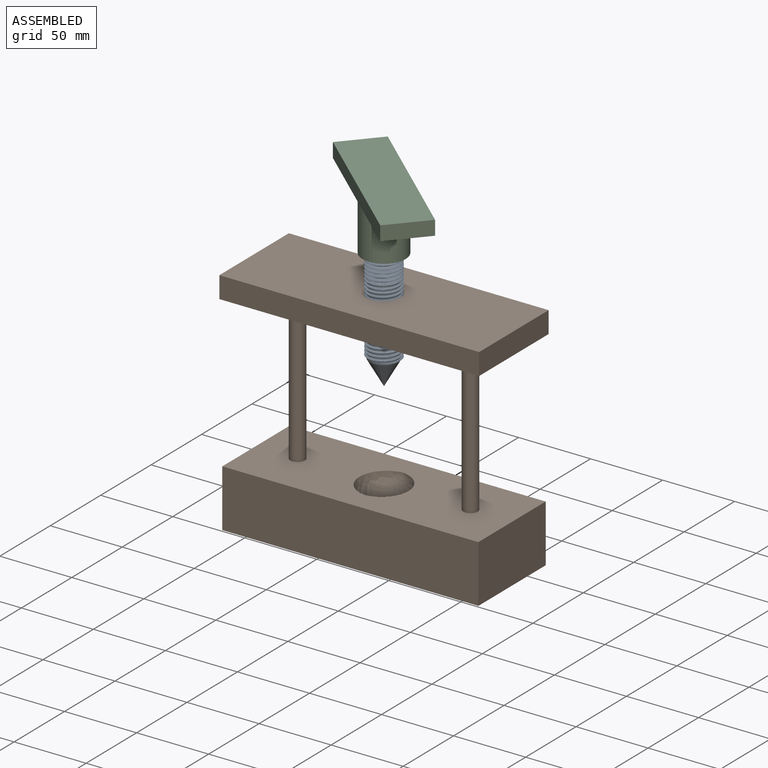
[diagram: assembled view]
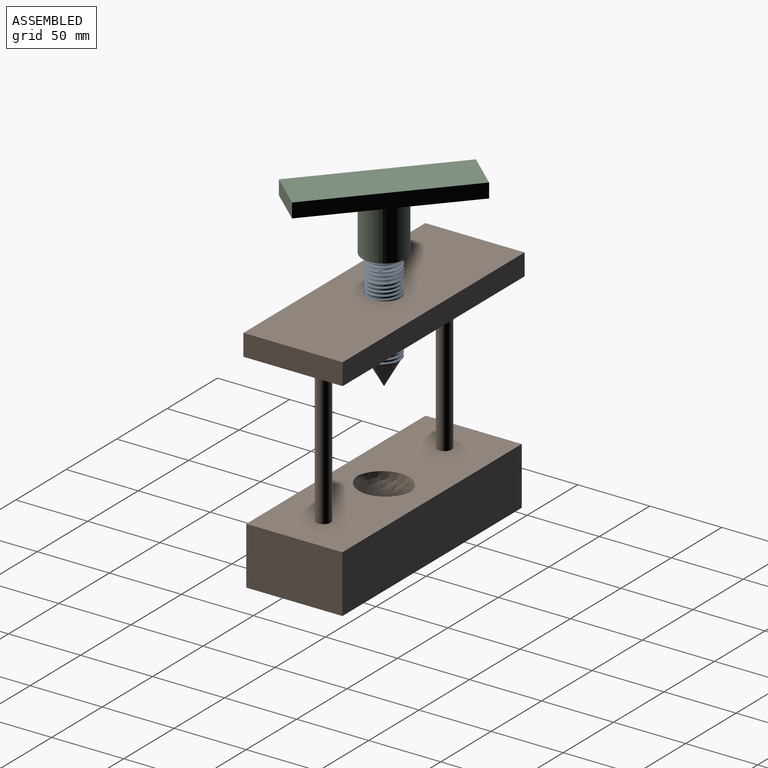
[diagram: assembled view, second angle]
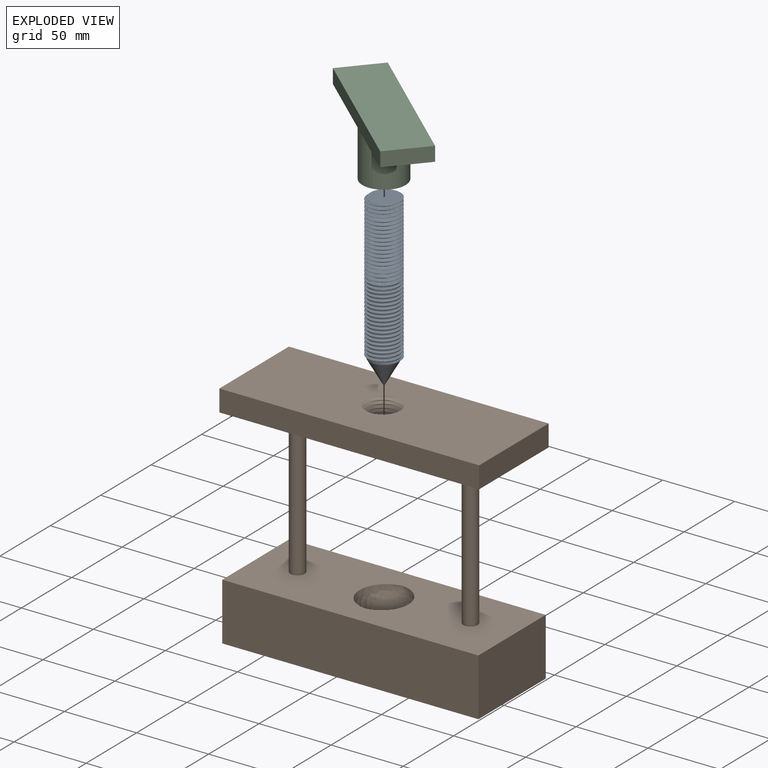
[diagram: exploded view]
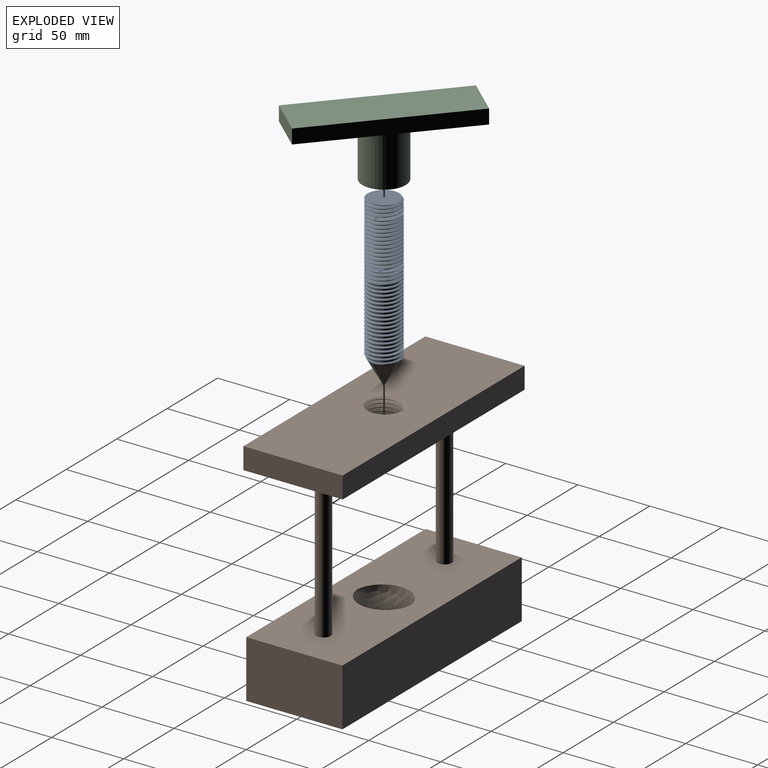
[diagram: exploded view, second angle]
ASSEMBLY  parts=3 mates=2
PART A: 28 faces, bbox 24.2x27.7x122.3 mm
  f0: cylinder r=11.29mm len=100mm, axis (0,0,-1), area 2212.9mm2, adj f1,f2,f3,f4
  f1: plane 22.44x22.4mm, normal (0,0,1), area 339.6mm2, adj f0,f3,f4
  f2: plane 21.52x19.29mm, normal (0,0,-1), area 32.3mm2, adj f0,f3,f4,f5
  f3: bspline ~102.4x26.08mm, area 4981.3mm2, adj f0,f1,f2,f4,f5,f6,f7,f8
  f4: bspline ~102.74x22.56mm, area 6307.3mm2, adj f0,f1,f2,f3,f5,f6,f7,f8
  f5: cylinder r=10mm len=20mm, axis (0,0,1), area 102.9mm2, adj f2,f3,f4,f25,f27
  f6: cylinder r=10mm len=16.83mm, axis (0,0,1), area 10.6mm2, adj f3,f4,f7,f26
  f7: cylinder r=10mm len=20mm, axis (0,0,1), area 50.6mm2, adj f3,f4,f6,f8
  f8: cylinder r=10mm len=20mm, axis (0,0,1), area 50.6mm2, adj f3,f4,f7,f9
  f9: cylinder r=10mm len=20mm, axis (0,0,1), area 50.6mm2, adj f3,f4,f8,f10
  f10: cylinder r=10mm len=20mm, axis (0,0,1), area 50.6mm2, adj f3,f4,f9,f11
  f11: cylinder r=10mm len=20mm, axis (0,0,1), area 50.6mm2, adj f3,f4,f10,f12
  f12: cylinder r=10mm len=20mm, axis (0,0,1), area 50.6mm2, adj f3,f4,f11,f13
  f13: cylinder r=10mm len=20mm, axis (0,0,1), area 50.6mm2, adj f3,f4,f12,f14
  f14: cylinder r=10mm len=20mm, axis (0,0,1), area 50.6mm2, adj f3,f4,f13,f15
  f15: cylinder r=10mm len=20mm, axis (0,0,1), area 50.6mm2, adj f3,f4,f14,f16
  f16: cylinder r=10mm len=20mm, axis (0,0,1), area 50.6mm2, adj f3,f4,f15,f17
  f17: cylinder r=10mm len=20mm, axis (0,0,1), area 50.6mm2, adj f3,f4,f16,f18
  f18: cylinder r=10mm len=20mm, axis (0,0,1), area 50.6mm2, adj f3,f4,f17,f19
  f19: cylinder r=10mm len=20mm, axis (0,0,1), area 50.6mm2, adj f3,f4,f18,f20
  f20: cylinder r=10mm len=20mm, axis (0,0,1), area 50.6mm2, adj f3,f4,f19,f21
  f21: cylinder r=10mm len=20mm, axis (0,0,1), area 50.6mm2, adj f3,f4,f20,f22
  f22: cylinder r=10mm len=20mm, axis (0,0,1), area 50.6mm2, adj f3,f4,f21,f23
  f23: cylinder r=10mm len=20mm, axis (0,0,1), area 50.6mm2, adj f3,f4,f22,f24
  f24: cylinder r=10mm len=20mm, axis (0,0,1), area 50.6mm2, adj f3,f4,f23,f25
  f25: cylinder r=10mm len=20mm, axis (0,0,1), area 50.6mm2, adj f3,f4,f5,f24
  f26: plane 16.75x7.42mm, normal (0,0,1), area 6.9mm2, adj f3,f4,f6
  f27: cone r=10mm half-angle=29.5deg, axis (0,0,1), area 638.8mm2, adj f5
PART B: 18 faces, bbox 182.1x70.6x163 mm
  f0: plane 180.35x15mm, normal (0,-1,0), area 2705.2mm2, adj f1,f4,f5,f6
  f1: plane 68.89x15mm, normal (1,0,0), area 1033.4mm2, adj f0,f2,f5,f6
  f2: plane 180.35x15mm, normal (0,1,0), area 2705.2mm2, adj f1,f4,f5,f6
  f3: cylinder r=11.29mm len=22.59mm, axis (0,0,-1), area 38.9mm2, adj f5,f6,f16,f17
  f4: plane 68.89x15mm, normal (-1,0,0), area 1033.4mm2, adj f0,f2,f5,f6
  f5: plane 182.06x70.6mm, normal (0,0,1), area 11948.3mm2, adj f0,f1,f2,f3,f4,f16,f17
  f6: plane 182.06x70.6mm, normal (0,0,-1), area 11791.2mm2, adj f0,f1,f2,f3,f4,f7,f8,f16
  f7: cylinder r=5mm len=105mm, axis (0,0,1), area 3298.7mm2, adj f6,f14
  f8: cylinder r=5mm len=105mm, axis (0,0,1), area 3298.7mm2, adj f6,f14
  f9: plane 177.75x40mm, normal (0,1,0), area 7109.9mm2, adj f10,f12,f13,f14
  f10: plane 66.7x40mm, normal (1,0,0), area 2668.1mm2, adj f9,f11,f13,f14
  f11: plane 177.75x40mm, normal (0,-1,0), area 7109.9mm2, adj f10,f12,f13,f14
  f12: plane 66.7x40mm, normal (-1,0,0), area 2668.1mm2, adj f9,f11,f13,f14
  f13: plane 177.75x66.7mm, normal (0,0,-1), area 11856.3mm2, adj f9,f10,f11,f12
  f14: plane 177.75x66.7mm, normal (0,0,1), area 10729.5mm2, adj f7,f8,f9,f10,f11,f12,f15
  f15: revolved ~37.25x33.94mm, area 1887.8mm2, adj f14
  f16: bspline ~30.88x26.75mm, area 1116.6mm2, adj f3,f5,f6,f17
  f17: bspline ~30.88x26.75mm, area 1115.9mm2, adj f3,f5,f6,f16
PART C: 10 faces, bbox 32.1x115.3x45 mm
  f0: cylinder r=11.29mm len=35mm, axis (0,0,-1), area 2483.9mm2, adj f2,f9
  f1: cylinder r=15mm len=35mm, axis (0,0,-1), area 3298.7mm2, adj f2,f3
  f2: plane 30x30mm, normal (0,0,-1), area 306.1mm2, adj f0,f1
  f3: plane 115.27x32.07mm, normal (0,0,-1), area 2989.9mm2, adj f1,f5,f6,f7,f8
  f4: plane 115.27x32.07mm, normal (0,0,1), area 3696.8mm2, adj f5,f6,f7,f8
  f5: plane 32.07x10mm, normal (0,-1,0), area 320.7mm2, adj f3,f4,f6,f8
  f6: plane 115.27x10mm, normal (-1,0,0), area 1152.7mm2, adj f3,f4,f5,f7
  f7: plane 32.07x10mm, normal (0,1,0), area 320.7mm2, adj f3,f4,f6,f8
  f8: plane 115.27x10mm, normal (1,0,0), area 1152.7mm2, adj f3,f4,f5,f7
  f9: plane 22.59x22.59mm, normal (0,0,-1), area 400.8mm2, adj f0
PLACE A rot(axis=(0,0,1),48.5deg) t=(65.61,51.58,110.64)mm
PLACE B t=(65.61,51.58,85.55)mm fixed
PLACE C rot(axis=(0,0,1),48.5deg) t=(65.61,51.58,143.14)mm
MATE cylindrical A.f5 <-> B.f3  axis (0,0,1) through (65.61,51.58,59.64)mm
MATE fastened A.f0 <-> C.f0  axis (0,0,1) through (65.61,51.58,160.64)mm
